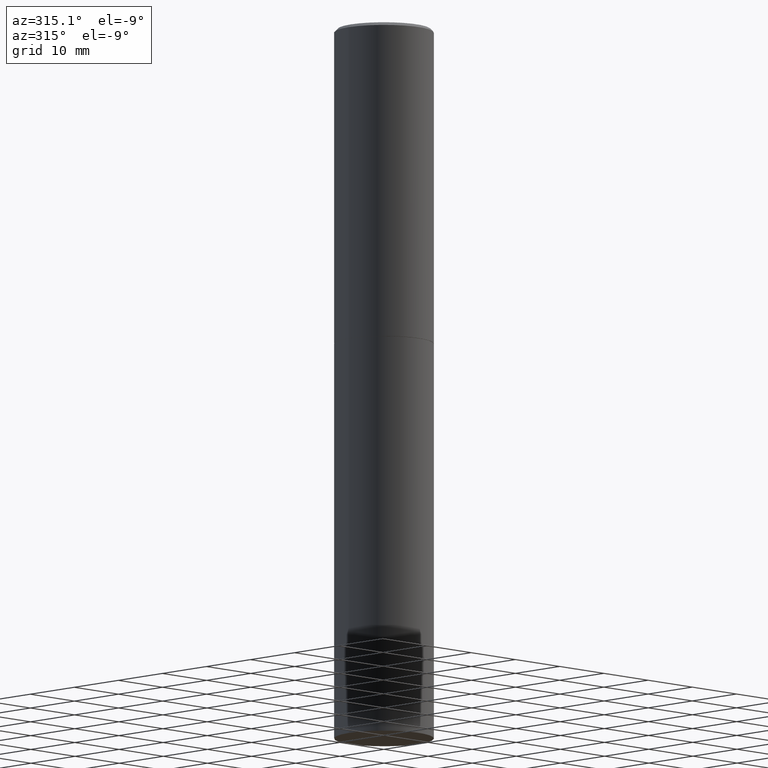
[diagram: clean part render]
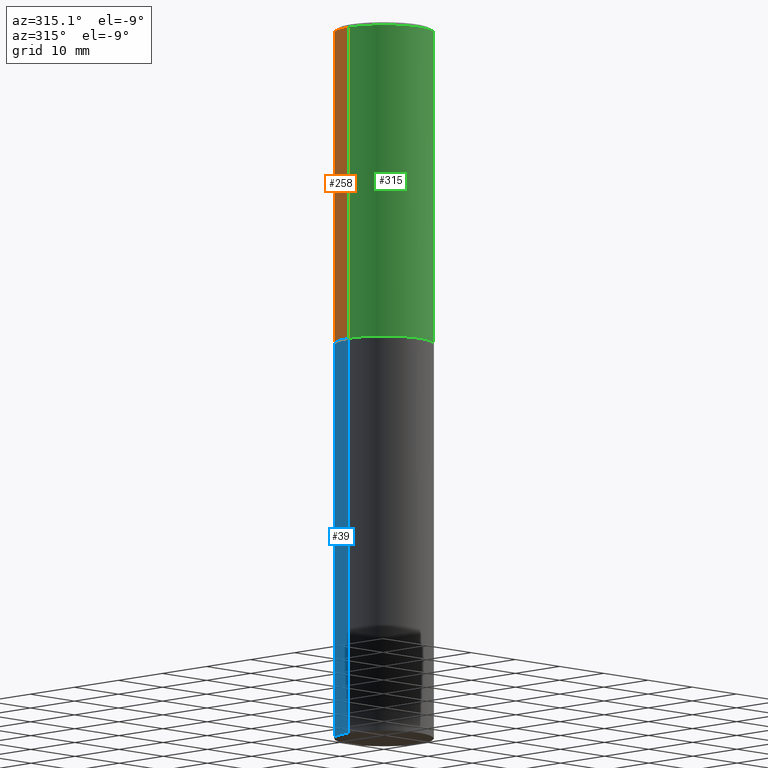
[diagram: same view with three faces highlighted in distinct colors, each labeled with its STEP entity id]
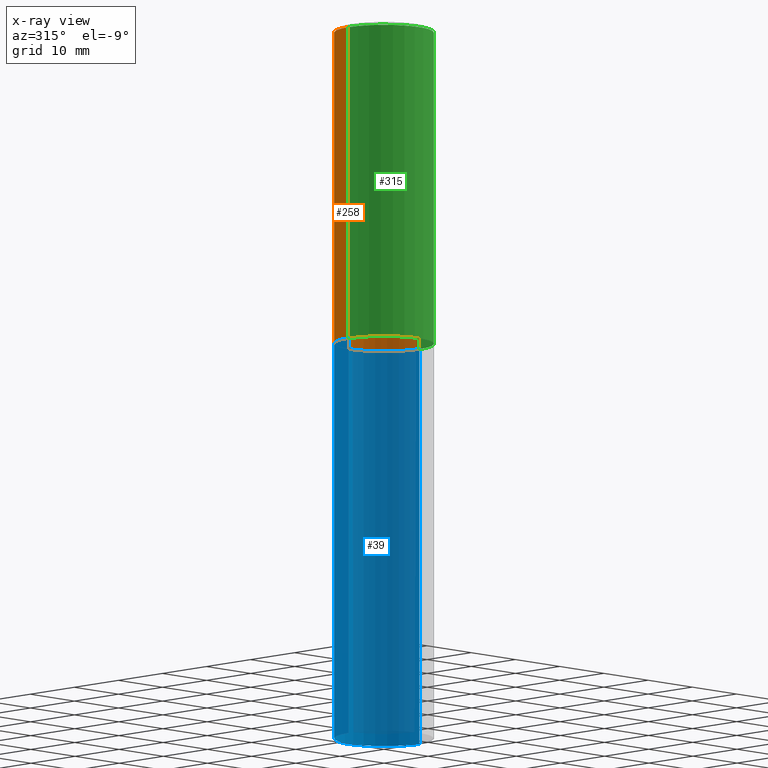
[diagram: x-ray of the same camera — body ghosted, the three highlighted faces saturated]
A machine part, auxiliary view with three faces highlighted in distinct colors.
The next image is the same camera in x-ray (body ghosted, the three faces saturated) — at least one of them is partly hidden behind the body in this view.
Their STEP definitions:

[orange] entity #258 — the highlighted cylindrical surface (partial cylindrical patch) has radius 7.9997 mm, axis along (-0, 0, 1).
#15 = VERTEX_POINT ( 'NONE', #360 ) ;
#17 = ORIENTED_EDGE ( 'NONE', *, *, #269, .T. ) ;
#27 = DIRECTION ( 'NONE',  ( -2.445468806185136597E-29, 3.491481338843145583E-15, 1.000000000000000000 ) ) ;
#54 = DIRECTION ( 'NONE',  ( 1.000000000000000000, -6.982962677686266711E-15, 0.000000000000000000 ) ) ;
#64 = CARTESIAN_POINT ( 'NONE',  ( 0.3149499999999998967, -2.199284095337288688E-15, 1.535751875536929289E-29 ) ) ;
#73 = AXIS2_PLACEMENT_3D ( 'NONE', #89, #123, #198 ) ;
#89 = CARTESIAN_POINT ( 'NONE',  ( 0.000000000000000000, 0.000000000000000000, 0.000000000000000000 ) ) ;
#90 = EDGE_CURVE ( 'NONE', #15, #127, #155, .T. ) ;
#93 = FACE_OUTER_BOUND ( 'NONE', #205, .T. ) ;
#95 = EDGE_CURVE ( 'NONE', #105, #148, #299, .T. ) ;
#105 = VERTEX_POINT ( 'NONE', #364 ) ;
#119 = DIRECTION ( 'NONE',  ( -2.445468806185136877E-29, 3.491481338843145188E-15, 1.000000000000000000 ) ) ;
#123 = DIRECTION ( 'NONE',  ( -2.445468806185136597E-29, 3.491481338843145583E-15, 1.000000000000000000 ) ) ;
#127 = VERTEX_POINT ( 'NONE', #162 ) ;
#148 = VERTEX_POINT ( 'NONE', #307 ) ;
#152 = ORIENTED_EDGE ( 'NONE', *, *, #90, .T. ) ;
#155 = CIRCLE ( 'NONE', #248, 0.3149500000000000077 ) ;
#156 = ORIENTED_EDGE ( 'NONE', *, *, #95, .F. ) ;
#162 = CARTESIAN_POINT ( 'NONE',  ( -0.3149500000000000077, -1.300587416574147649E-15, -2.006899999999999462 ) ) ;
#172 = DIRECTION ( 'NONE',  ( -2.445468806185136877E-29, 3.491481338843145188E-15, 1.000000000000000000 ) ) ;
#198 = DIRECTION ( 'NONE',  ( 1.000000000000000000, -6.982962677686265922E-15, 4.876176775795935232E-29 ) ) ;
#204 = ORIENTED_EDGE ( 'NONE', *, *, #322, .F. ) ;
#205 = EDGE_LOOP ( 'NONE', ( #152, #17, #156, #204 ) ) ;
#211 = CARTESIAN_POINT ( 'NONE',  ( 4.907811347132949146E-29, -7.007053898924306337E-15, -2.006899999999999462 ) ) ;
#226 = CYLINDRICAL_SURFACE ( 'NONE', #73, 0.3149499999999998967 ) ;
#247 = CARTESIAN_POINT ( 'NONE',  ( -0.3149499999999998967, 2.237854346276434801E-15, -1.549218606675782116E-29 ) ) ;
#248 = AXIS2_PLACEMENT_3D ( 'NONE', #211, #359, #306 ) ;
#257 = LINE ( 'NONE', #247, #330 ) ;
#258 = ADVANCED_FACE ( 'NONE', ( #93 ), #226, .T. ) ;
#269 = EDGE_CURVE ( 'NONE', #127, #148, #257, .T. ) ;
#275 = CARTESIAN_POINT ( 'NONE',  ( 4.890937612370289799E-31, -6.982962677686315028E-17, -0.02000000000000006981 ) ) ;
#286 = VECTOR ( 'NONE', #172, 39.37007874015748143 ) ;
#299 = CIRCLE ( 'NONE', #318, 0.3149499999999997302 ) ;
#306 = DIRECTION ( 'NONE',  ( 1.000000000000000000, -6.982962677686266711E-15, 0.000000000000000000 ) ) ;
#307 = CARTESIAN_POINT ( 'NONE',  ( -0.3149499999999997302, 2.129454468560424601E-15, -0.02000000000000006981 ) ) ;
#318 = AXIS2_PLACEMENT_3D ( 'NONE', #275, #27, #54 ) ;
#322 = EDGE_CURVE ( 'NONE', #15, #105, #366, .T. ) ;
#330 = VECTOR ( 'NONE', #119, 39.37007874015748143 ) ;
#359 = DIRECTION ( 'NONE',  ( -2.445468806185136597E-29, 3.491481338843145583E-15, 1.000000000000000000 ) ) ;
#360 = CARTESIAN_POINT ( 'NONE',  ( 0.3149500000000000077, -9.206337994261596208E-15, -2.006899999999999462 ) ) ;
#364 = CARTESIAN_POINT ( 'NONE',  ( 0.3149499999999997302, -2.230543471175005478E-15, -0.02000000000000006981 ) ) ;
#366 = LINE ( 'NONE', #64, #286 ) ;

[blue] entity #39 — the highlighted cylindrical surface (partial cylindrical patch) has radius 7.9997 mm, axis along (-0, 0, 1).
#2 = CARTESIAN_POINT ( 'NONE',  ( 0.3149500000000000077, -1.800731500508351534E-14, -4.527599999999999625 ) ) ;
#25 = VERTEX_POINT ( 'NONE', #137 ) ;
#26 = AXIS2_PLACEMENT_3D ( 'NONE', #88, #192, #276 ) ;
#39 = ADVANCED_FACE ( 'NONE', ( #188 ), #134, .T. ) ;
#53 = CARTESIAN_POINT ( 'NONE',  ( 1.107210456688382298E-28, -1.580803090974622389E-14, -4.527599999999999625 ) ) ;
#57 = CARTESIAN_POINT ( 'NONE',  ( 0.000000000000000000, 0.000000000000000000, 0.000000000000000000 ) ) ;
#76 = ORIENTED_EDGE ( 'NONE', *, *, #294, .F. ) ;
#77 = EDGE_CURVE ( 'NONE', #265, #25, #340, .T. ) ;
#79 = EDGE_CURVE ( 'NONE', #25, #323, #161, .T. ) ;
#86 = DIRECTION ( 'NONE',  ( -2.445468806185136877E-29, 3.491481338843145188E-15, 1.000000000000000000 ) ) ;
#88 = CARTESIAN_POINT ( 'NONE',  ( 4.910256815939134188E-29, -7.010545380263150133E-15, -2.007899999999999352 ) ) ;
#91 = CARTESIAN_POINT ( 'NONE',  ( 0.3149500000000000077, -2.199284095337289871E-15, 1.535751875536930130E-29 ) ) ;
#94 = DIRECTION ( 'NONE',  ( -2.445468806185136877E-29, 3.491481338843145188E-15, 1.000000000000000000 ) ) ;
#131 = VERTEX_POINT ( 'NONE', #365 ) ;
#134 = CYLINDRICAL_SURFACE ( 'NONE', #348, 0.3149500000000000077 ) ;
#137 = CARTESIAN_POINT ( 'NONE',  ( -0.3149500000000000077, -9.171433798728249845E-15, -4.527599999999999625 ) ) ;
#146 = EDGE_CURVE ( 'NONE', #131, #323, #186, .T. ) ;
#161 = LINE ( 'NONE', #213, #201 ) ;
#165 = DIRECTION ( 'NONE',  ( -2.445468806185136597E-29, 3.491481338843145583E-15, 1.000000000000000000 ) ) ;
#175 = ORIENTED_EDGE ( 'NONE', *, *, #77, .T. ) ;
#186 = CIRCLE ( 'NONE', #26, 0.3149500000000000077 ) ;
#188 = FACE_OUTER_BOUND ( 'NONE', #327, .T. ) ;
#192 = DIRECTION ( 'NONE',  ( -2.445468806185136597E-29, 3.491481338843145583E-15, 1.000000000000000000 ) ) ;
#201 = VECTOR ( 'NONE', #86, 39.37007874015748143 ) ;
#213 = CARTESIAN_POINT ( 'NONE',  ( -0.3149500000000000077, 2.237854346276435590E-15, -1.549218606675782676E-29 ) ) ;
#214 = VECTOR ( 'NONE', #94, 39.37007874015748143 ) ;
#243 = DIRECTION ( 'NONE',  ( 1.000000000000000000, -6.982962677686266711E-15, 4.876176775795936353E-29 ) ) ;
#244 = DIRECTION ( 'NONE',  ( 1.000000000000000000, -6.982962677686269866E-15, 0.000000000000000000 ) ) ;
#265 = VERTEX_POINT ( 'NONE', #2 ) ;
#276 = DIRECTION ( 'NONE',  ( 1.000000000000000000, -6.982962677686269866E-15, 0.000000000000000000 ) ) ;
#280 = LINE ( 'NONE', #91, #214 ) ;
#294 = EDGE_CURVE ( 'NONE', #265, #131, #280, .T. ) ;
#312 = AXIS2_PLACEMENT_3D ( 'NONE', #53, #165, #244 ) ;
#323 = VERTEX_POINT ( 'NONE', #345 ) ;
#325 = ORIENTED_EDGE ( 'NONE', *, *, #79, .T. ) ;
#327 = EDGE_LOOP ( 'NONE', ( #175, #325, #351, #76 ) ) ;
#331 = DIRECTION ( 'NONE',  ( -2.445468806185136597E-29, 3.491481338843145583E-15, 1.000000000000000000 ) ) ;
#340 = CIRCLE ( 'NONE', #312, 0.3149500000000000077 ) ;
#345 = CARTESIAN_POINT ( 'NONE',  ( -0.3149500000000000077, -9.171433798728249845E-15, -2.007899999999999352 ) ) ;
#348 = AXIS2_PLACEMENT_3D ( 'NONE', #57, #331, #243 ) ;
#351 = ORIENTED_EDGE ( 'NONE', *, *, #146, .F. ) ;
#365 = CARTESIAN_POINT ( 'NONE',  ( 0.3149500000000000077, -9.209829475600440793E-15, -2.007899999999999352 ) ) ;

[green] entity #315 — the highlighted cylindrical surface (partial cylindrical patch) has radius 7.9997 mm, axis along (-0, 0, 1).
#6 = CIRCLE ( 'NONE', #313, 0.3149499999999997302 ) ;
#11 = ORIENTED_EDGE ( 'NONE', *, *, #22, .T. ) ;
#15 = VERTEX_POINT ( 'NONE', #360 ) ;
#22 = EDGE_CURVE ( 'NONE', #127, #15, #30, .T. ) ;
#30 = CIRCLE ( 'NONE', #278, 0.3149500000000000077 ) ;
#35 = DIRECTION ( 'NONE',  ( -2.445468806185136597E-29, 3.491481338843145583E-15, 1.000000000000000000 ) ) ;
#64 = CARTESIAN_POINT ( 'NONE',  ( 0.3149499999999998967, -2.199284095337288688E-15, 1.535751875536929289E-29 ) ) ;
#65 = DIRECTION ( 'NONE',  ( 1.000000000000000000, -6.982962677686265922E-15, 4.876176775795935232E-29 ) ) ;
#69 = ORIENTED_EDGE ( 'NONE', *, *, #322, .T. ) ;
#105 = VERTEX_POINT ( 'NONE', #364 ) ;
#119 = DIRECTION ( 'NONE',  ( -2.445468806185136877E-29, 3.491481338843145188E-15, 1.000000000000000000 ) ) ;
#127 = VERTEX_POINT ( 'NONE', #162 ) ;
#129 = ORIENTED_EDGE ( 'NONE', *, *, #289, .F. ) ;
#133 = DIRECTION ( 'NONE',  ( 1.000000000000000000, -6.982962677686266711E-15, 0.000000000000000000 ) ) ;
#142 = CYLINDRICAL_SURFACE ( 'NONE', #273, 0.3149499999999998967 ) ;
#144 = DIRECTION ( 'NONE',  ( -2.445468806185136597E-29, 3.491481338843145583E-15, 1.000000000000000000 ) ) ;
#148 = VERTEX_POINT ( 'NONE', #307 ) ;
#162 = CARTESIAN_POINT ( 'NONE',  ( -0.3149500000000000077, -1.300587416574147649E-15, -2.006899999999999462 ) ) ;
#172 = DIRECTION ( 'NONE',  ( -2.445468806185136877E-29, 3.491481338843145188E-15, 1.000000000000000000 ) ) ;
#190 = CARTESIAN_POINT ( 'NONE',  ( 4.907811347132949146E-29, -7.007053898924306337E-15, -2.006899999999999462 ) ) ;
#227 = CARTESIAN_POINT ( 'NONE',  ( 0.000000000000000000, 0.000000000000000000, 0.000000000000000000 ) ) ;
#247 = CARTESIAN_POINT ( 'NONE',  ( -0.3149499999999998967, 2.237854346276434801E-15, -1.549218606675782116E-29 ) ) ;
#257 = LINE ( 'NONE', #247, #330 ) ;
#266 = ORIENTED_EDGE ( 'NONE', *, *, #269, .F. ) ;
#269 = EDGE_CURVE ( 'NONE', #127, #148, #257, .T. ) ;
#273 = AXIS2_PLACEMENT_3D ( 'NONE', #227, #144, #65 ) ;
#278 = AXIS2_PLACEMENT_3D ( 'NONE', #190, #363, #133 ) ;
#281 = FACE_OUTER_BOUND ( 'NONE', #358, .T. ) ;
#286 = VECTOR ( 'NONE', #172, 39.37007874015748143 ) ;
#289 = EDGE_CURVE ( 'NONE', #148, #105, #6, .T. ) ;
#307 = CARTESIAN_POINT ( 'NONE',  ( -0.3149499999999997302, 2.129454468560424601E-15, -0.02000000000000006981 ) ) ;
#313 = AXIS2_PLACEMENT_3D ( 'NONE', #339, #35, #344 ) ;
#315 = ADVANCED_FACE ( 'NONE', ( #281 ), #142, .T. ) ;
#322 = EDGE_CURVE ( 'NONE', #15, #105, #366, .T. ) ;
#330 = VECTOR ( 'NONE', #119, 39.37007874015748143 ) ;
#339 = CARTESIAN_POINT ( 'NONE',  ( 4.890937612370289799E-31, -6.982962677686315028E-17, -0.02000000000000006981 ) ) ;
#344 = DIRECTION ( 'NONE',  ( 1.000000000000000000, -6.982962677686266711E-15, 0.000000000000000000 ) ) ;
#358 = EDGE_LOOP ( 'NONE', ( #266, #11, #69, #129 ) ) ;
#360 = CARTESIAN_POINT ( 'NONE',  ( 0.3149500000000000077, -9.206337994261596208E-15, -2.006899999999999462 ) ) ;
#363 = DIRECTION ( 'NONE',  ( -2.445468806185136597E-29, 3.491481338843145583E-15, 1.000000000000000000 ) ) ;
#364 = CARTESIAN_POINT ( 'NONE',  ( 0.3149499999999997302, -2.230543471175005478E-15, -0.02000000000000006981 ) ) ;
#366 = LINE ( 'NONE', #64, #286 ) ;